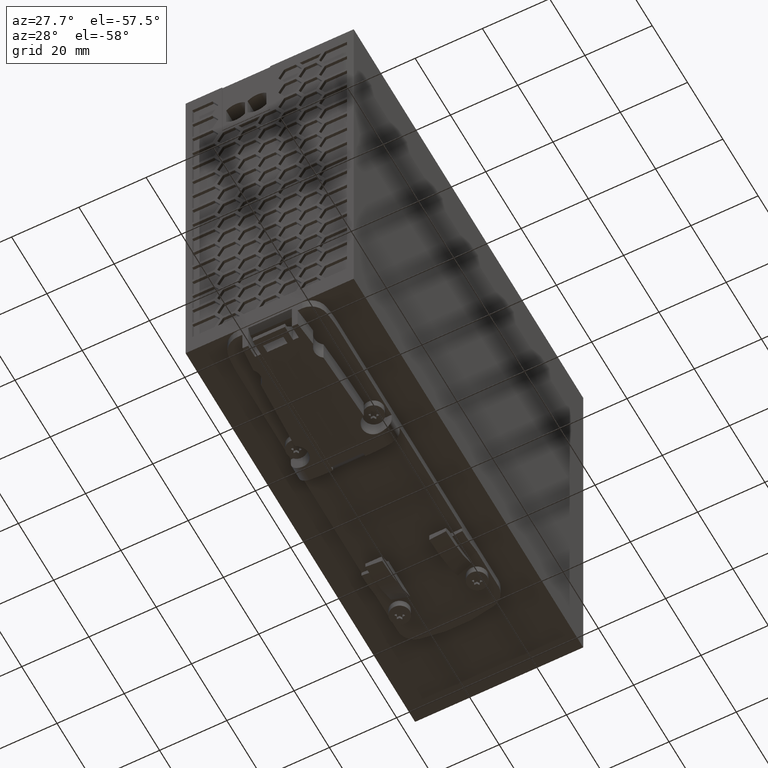
[diagram: clean part render]
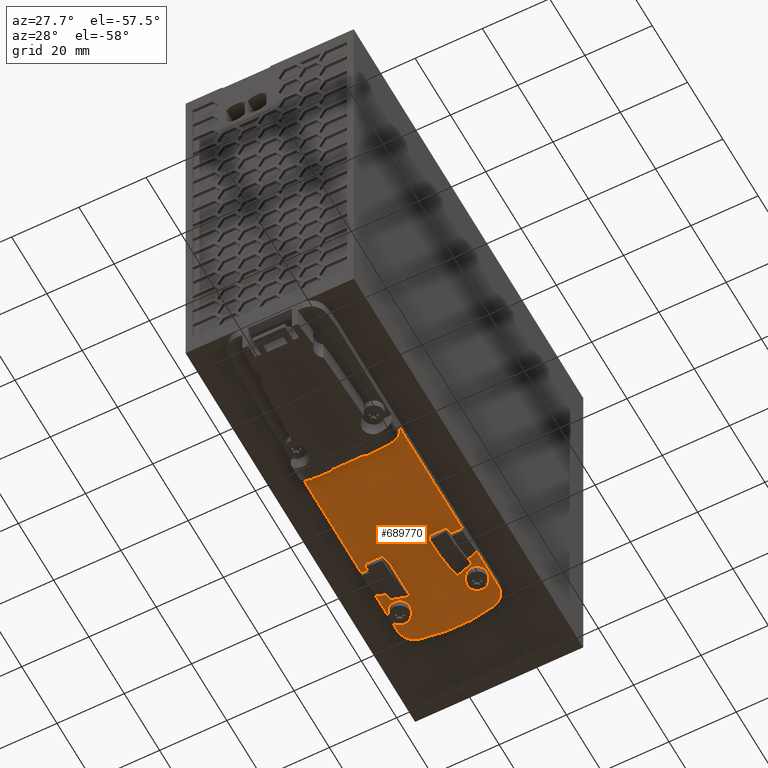
[diagram: same view with one face highlighted and labeled with its STEP entity id]
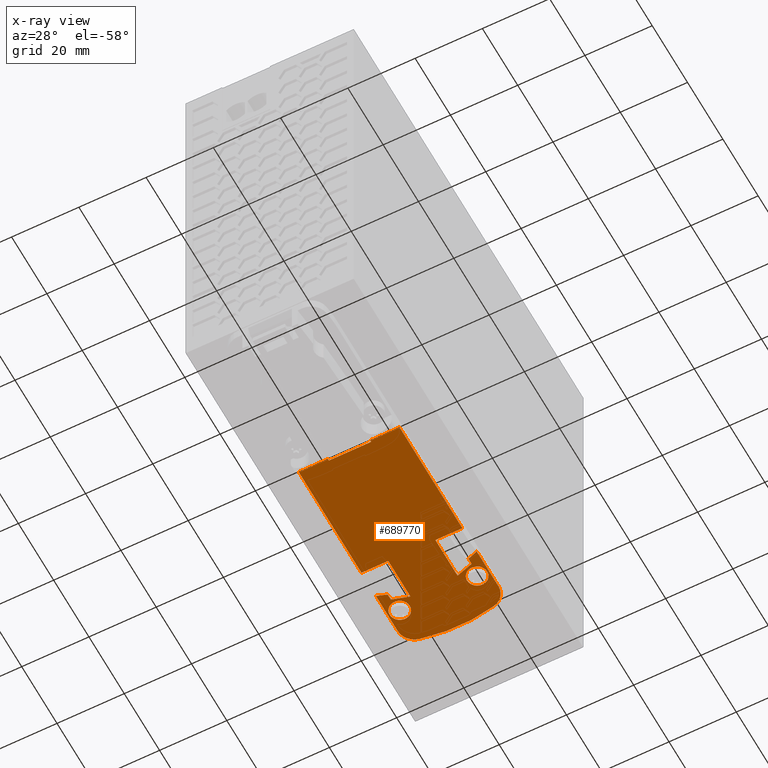
[diagram: x-ray of the same camera — body ghosted, the highlighted face saturated]
A machine part, auxiliary view. The second image highlights one B-rep face of the part: STEP entity #689770.
The next image is the same camera in x-ray: the body ghosted, the highlighted face saturated — about 0% of this face is hidden behind the body in this view.
In plain terms, the highlighted planar face has unit normal (-0, 0, -1).
Its self-contained STEP definition (entity closure, byte-faithful):
#573440=CARTESIAN_POINT('',(24.3012630065629,45.5488077706603,
6.59999999999972));
#573450=VERTEX_POINT('',#573440);
#573500=CARTESIAN_POINT('',(0.00178708709996158,45.548473730133,
6.59999999999972));
#573510=DIRECTION('',(0.999999999905512,1.37468202365522E-5,
5.47171506811966E-60));
#573520=VECTOR('',#573510,1.);
#573530=LINE('',#573500,#573520);
#573540=CARTESIAN_POINT('',(11.7012630077534,45.5486345607253,
6.59999999999972));
#573550=VERTEX_POINT('',#573540);
#573560=EDGE_CURVE('',#573550,#573450,#573530,.T.);
#578600=CARTESIAN_POINT('',(3.00126988198557,45.0485149634365,
6.59999999999972));
#578610=VERTEX_POINT('',#578600);
#578640=CARTESIAN_POINT('',(3.00011306664807,129.2,6.59999999999972));
#578650=DIRECTION('',(1.37468202359206E-5,-0.999999999905512,
3.26265223505973E-55));
#578660=VECTOR('',#578650,1.);
#578670=LINE('',#578640,#578660);
#578680=CARTESIAN_POINT('',(3.00078186986719,80.5485149600822,
6.59999999999972));
#578690=VERTEX_POINT('',#578680);
#578700=EDGE_CURVE('',#578690,#578610,#578670,.T.);
#579070=CARTESIAN_POINT('',(3.00066966039108,88.7110917725239,
6.59999999999974));
#579080=VERTEX_POINT('',#579070);
#579110=CARTESIAN_POINT('',(3.00011306664807,129.2,6.59999999999972));
#579120=DIRECTION('',(1.37468202359206E-5,-0.999999999905512,
3.26265223505973E-55));
#579130=VECTOR('',#579120,1.);
#579140=LINE('',#579110,#579130);
#579150=CARTESIAN_POINT('',(3.00049971882965,101.073336895104,
6.59999999999972));
#579160=VERTEX_POINT('',#579150);
#579170=EDGE_CURVE('',#579160,#579080,#579140,.T.);
#606040=CARTESIAN_POINT('',(30.0006545901301,89.8075498553755,
6.59999999999972));
#606050=VERTEX_POINT('',#606040);
#606080=CARTESIAN_POINT('',(30.0001130691992,129.2,6.59999999999972));
#606090=DIRECTION('',(-1.37468202359331E-5,0.999999999905513,
-3.26265223505973E-55));
#606100=VECTOR('',#606090,1.);
#606110=LINE('',#606080,#606100);
#606120=CARTESIAN_POINT('',(30.0006303560198,91.5704382812119,
6.59999999999768));
#606130=VERTEX_POINT('',#606120);
#606140=EDGE_CURVE('',#606050,#606130,#606110,.T.);
#611670=CARTESIAN_POINT('',(25.0007818677885,80.5488173901274,
6.59999999999972));
#611680=VERTEX_POINT('',#611670);
#611710=CARTESIAN_POINT('',(0.00178708709996158,80.5484737334401,
6.59999999999972));
#611720=DIRECTION('',(0.999999999905512,1.37468202355531E-5,
5.47171506844563E-60));
#611730=VECTOR('',#611720,1.);
#611740=LINE('',#611710,#611730);
#611750=CARTESIAN_POINT('',(33.0007818670326,80.5489273646893,
6.59999999999972));
#611760=VERTEX_POINT('',#611750);
#611770=EDGE_CURVE('',#611680,#611760,#611740,.T.);
#616910=CARTESIAN_POINT('',(6.00065459239785,89.8072199267511,
6.59999999999972));
#616920=CARTESIAN_POINT('',(5.98476421142438,89.8022766316507,
6.59999999999972));
#616930=CARTESIAN_POINT('',(5.95298958652914,89.7923702841277,
6.59999999999972));
#616940=CARTESIAN_POINT('',(5.88946914156527,89.7724650776187,
6.59999999999972));
#616950=CARTESIAN_POINT('',(5.8101224164082,89.7474118773588,
6.59999999999972));
#616960=CARTESIAN_POINT('',(5.7387753413328,89.7246590431978,
6.59999999999972));
#616970=CARTESIAN_POINT('',(5.69123806289457,89.709404959447,
6.59999999999972));
#616980=CARTESIAN_POINT('',(5.65955442620393,89.6992109631759,
6.59999999999972));
#616990=CARTESIAN_POINT('',(5.57245576005785,89.6710776141812,
6.59999999999972));
#617000=CARTESIAN_POINT('',(5.43010635000332,89.6244959087909,
6.59999999999972));
#617010=CARTESIAN_POINT('',(5.05127607754603,89.4979564213531,
6.59999999999972));
#617020=CARTESIAN_POINT('',(4.48590698230466,89.2994310857445,
6.59999999999972));
#617030=CARTESIAN_POINT('',(3.86339380902277,89.0633757548544,
6.59999999999972));
#617040=CARTESIAN_POINT('',(3.4308793824773,88.8899380064901,
6.59999999999972));
#617050=CARTESIAN_POINT('',(3.23088705584881,88.8075050167989,
6.59999999999972));
#617060=CARTESIAN_POINT('',(3.14641726128744,88.7722888845206,
6.59999999999972));
#617070=CARTESIAN_POINT('',(3.11955406311227,88.7610513605265,
6.59999999999972));
#617080=CARTESIAN_POINT('',(3.10420751573085,88.7546207225749,
6.59999999999972));
#617090=CARTESIAN_POINT('',(3.08119201267528,88.7449644878059,
6.59999999999974));
#617100=CARTESIAN_POINT('',(3.05434811198608,88.7336809751512,
6.59999999999972));
#617110=CARTESIAN_POINT('',(3.02750737338545,88.7223899577265,
6.59999999999972));
#617120=CARTESIAN_POINT('',(3.01408794729577,88.7167422076046,
6.59999999999972));
#617130=CARTESIAN_POINT('',(3.00641989085222,88.7135144791262,
6.59999999999972));
#617140=CARTESIAN_POINT('',(3.00258618325065,88.7118998529655,
6.59999999999972));
#617150=CARTESIAN_POINT('',(3.00066965469374,88.7110917684843,
6.59999999999972));
#617160=B_SPLINE_CURVE_WITH_KNOTS('',3,(#616910,#616920,#616930,#616940,
#616950,#616960,#616970,#616980,#616990,#617000,#617010,#617020,#617030,
#617040,#617050,#617060,#617070,#617080,#617090,#617100,#617110,#617120,
#617130,#617140,#617150),.UNSPECIFIED.,.F.,.F.,(4,1,1,1,1,1,1,1,1,1,1,1,
1,1,1,1,1,1,1,1,1,1,4),(0.,0.015624733671173,0.031249469653176,
0.062499044700485,0.09374860621571,0.101561002358867,0.109373399372656,
0.124998194456258,0.187498141469384,0.249998122328627,0.499998939434173,
0.750035154333188,0.875018056520831,0.937509067185836,0.953131804020811,
0.960943172601073,0.964848856958487,0.968754541260401,0.984377271003576,
0.992188635879079,0.9960943180232,0.998047159057379,1.),.UNSPECIFIED.);
#617170=CARTESIAN_POINT('',(6.00065459239778,89.8072199316904,
6.59999999999972));
#617180=VERTEX_POINT('',#617170);
#617190=EDGE_CURVE('',#617180,#579080,#617160,.T.);
#628140=CARTESIAN_POINT('',(33.0006696575565,88.711504177131,
6.59999999999972));
#628150=VERTEX_POINT('',#628140);
#628190=CARTESIAN_POINT('',(33.0001130694827,129.2,6.59999999999972));
#628200=DIRECTION('',(1.37468202358229E-5,-0.999999999905513,
3.26265223505973E-55));
#628210=VECTOR('',#628200,1.);
#628220=LINE('',#628190,#628210);
#628230=CARTESIAN_POINT('',(33.0012698791509,45.0489273680436,
6.59999999999972));
#628240=VERTEX_POINT('',#628230);
#628250=EDGE_CURVE('',#611760,#628240,#628220,.T.);
#628610=CARTESIAN_POINT('',(33.000499715995,101.073749299711,
6.59999999999972));
#628620=VERTEX_POINT('',#628610);
#628650=CARTESIAN_POINT('',(33.0001130694827,129.2,6.59999999999972));
#628660=DIRECTION('',(1.37468202358229E-5,-0.999999999905513,
3.26265223505973E-55));
#628670=VECTOR('',#628660,1.);
#628680=LINE('',#628650,#628670);
#628690=EDGE_CURVE('',#628620,#628150,#628680,.T.);
#632710=CARTESIAN_POINT('',(26.5005749452048,95.6012444441962,
6.59999999999972));
#632720=VERTEX_POINT('',#632710);
#632750=CARTESIAN_POINT('',(29.5005749452048,95.6012444441962,
6.59999999999972));
#632760=DIRECTION('',(9.95682444457783E-60,-3.26265223399926E-55,-1.));
#632770=DIRECTION('',(-1.,1.38913403349705E-19,-9.95682444457783E-60));
#632780=AXIS2_PLACEMENT_3D('',#632750,#632760,#632770);
#632790=CIRCLE('',#632780,3.);
#632800=CARTESIAN_POINT('',(32.5005749452048,95.6012444441962,
6.59999999999972));
#632810=VERTEX_POINT('',#632800);
#632820=EDGE_CURVE('',#632810,#632720,#632790,.T.);
#634760=CARTESIAN_POINT('',(0.00178708709996158,80.5484737334401,
6.59999999999972));
#634770=DIRECTION('',(-0.999999999905513,-1.37468202355511E-5,
-5.47171506844629E-60));
#634780=VECTOR('',#634770,1.);
#634790=LINE('',#634760,#634780);
#634800=CARTESIAN_POINT('',(11.0007818691113,80.5486249346441,
6.59999999999972));
#634810=VERTEX_POINT('',#634800);
#634820=EDGE_CURVE('',#634810,#578690,#634790,.T.);
#635230=CARTESIAN_POINT('',(25.0001130687268,129.2,6.59999999999972));
#635240=DIRECTION('',(-1.37468202356956E-5,0.999999999905512,
-3.26265223505973E-55));
#635250=VECTOR('',#635240,1.);
#635260=LINE('',#635230,#635250);
#635270=CARTESIAN_POINT('',(25.0006094996072,93.0875847774152,
6.59999999999759));
#635280=VERTEX_POINT('',#635270);
#635290=EDGE_CURVE('',#611680,#635280,#635260,.T.);
#656590=CARTESIAN_POINT('',(11.000113067404,129.2,6.59999999999972));
#656600=DIRECTION('',(-1.3746820235798E-5,0.999999999905513,
-3.26265223505973E-55));
#656610=VECTOR('',#656600,1.);
#656620=LINE('',#656590,#656610);
#656630=CARTESIAN_POINT('',(11.00060950093,93.0873923219355,
6.59999999999972));
#656640=VERTEX_POINT('',#656630);
#656650=EDGE_CURVE('',#634810,#656640,#656620,.T.);
#659680=CARTESIAN_POINT('',(6.00011306693153,129.2,6.59999999999972));
#659690=DIRECTION('',(-1.37468202359883E-5,0.999999999905512,
-3.26265223505973E-55));
#659700=VECTOR('',#659690,1.);
#659710=LINE('',#659680,#659700);
#659720=CARTESIAN_POINT('',(6.00063035828749,91.5701083575295,
6.59999999999972));
#659730=VERTEX_POINT('',#659720);
#659740=EDGE_CURVE('',#617180,#659730,#659710,.T.);
#661480=CARTESIAN_POINT('',(30.0006545901301,89.8075498553755,
6.59999999999972));
#661490=CARTESIAN_POINT('',(30.016545107802,89.8026069970392,
6.59999999999972));
#661500=CARTESIAN_POINT('',(30.0483200054555,89.7927015190821,
6.59999999999972));
#661510=CARTESIAN_POINT('',(30.1118410008278,89.7727980584553,
6.59999999999972));
#661520=CARTESIAN_POINT('',(30.1911884186694,89.7477470388764,
6.59999999999972));
#661530=CARTESIAN_POINT('',(30.2625361222432,89.7249961638063,
6.59999999999972));
#661540=CARTESIAN_POINT('',(30.3100738221214,89.7097433856355,
6.59999999999972));
#661550=CARTESIAN_POINT('',(30.3417577405119,89.699550259728,
6.59999999999972));
#661560=CARTESIAN_POINT('',(30.4288571838585,89.6714193033112,
6.59999999999974));
#661570=CARTESIAN_POINT('',(30.5712078807246,89.6248415087899,
6.59999999999972));
#661580=CARTESIAN_POINT('',(30.9500416565816,89.4983124339032,
6.59999999999974));
#661590=CARTESIAN_POINT('',(31.5154160833374,89.2998025500072,
6.59999999999972));
#661600=CARTESIAN_POINT('',(32.1379358675141,89.063764775543,
6.59999999999972));
#661610=CARTESIAN_POINT('',(32.570454896679,88.890338590126,
6.59999999999972));
#661620=CARTESIAN_POINT('',(32.77044957678,88.8079110998804,
6.59999999999972));
#661630=CARTESIAN_POINT('',(32.854920381288,88.7726972769628,
6.59999999999972));
#661640=CARTESIAN_POINT('',(32.8817839004219,88.7614604865354,
6.59999999999972));
#661650=CARTESIAN_POINT('',(32.8971306312597,88.7550302670154,
6.59999999999972));
#661660=CARTESIAN_POINT('',(32.9201464075162,88.7453746542797,
6.59999999999972));
#661670=CARTESIAN_POINT('',(32.9469906343602,88.7340918835978,
6.59999999999972));
#661680=CARTESIAN_POINT('',(32.9738316946944,88.7228015970152,
6.59999999999972));
#661690=CARTESIAN_POINT('',(32.9872512818257,88.7171542125611,
6.59999999999972));
#661700=CARTESIAN_POINT('',(32.9949194289703,88.7139266898567,
6.59999999999972));
#661710=CARTESIAN_POINT('',(32.998753181176,88.7123121647552,
6.59999999999972));
#661720=CARTESIAN_POINT('',(33.0006697328075,88.7115041325775,
6.59999999999972));
#661730=B_SPLINE_CURVE_WITH_KNOTS('',3,(#661480,#661490,#661500,#661510,
#661520,#661530,#661540,#661550,#661560,#661570,#661580,#661590,#661600,
#661610,#661620,#661630,#661640,#661650,#661660,#661670,#661680,#661690,
#661700,#661710,#661720),.UNSPECIFIED.,.F.,.F.,(4,1,1,1,1,1,1,1,1,1,1,1,
1,1,1,1,1,1,1,1,1,1,4),(0.,0.015624734007336,0.031249470325589,
0.06249904604598,0.093748608238673,0.101561004551492,0.109373401735089,
0.124998197158643,0.187498145349089,0.249998127373343,0.499998954614795,
0.750035064020798,0.875018001263974,0.937509040707152,0.953131784068478,
0.960943155962061,0.964848841976381,0.968754527935468,0.984377264341221,
0.992188632547832,0.996094316357438,0.998047158224346,1.),.UNSPECIFIED.)
;
#661740=EDGE_CURVE('',#606050,#628150,#661730,.T.);
#682940=CARTESIAN_POINT('',(9.50057494737806,95.6009282673308,
6.59999999999972));
#682950=VERTEX_POINT('',#682940);
#683030=CARTESIAN_POINT('',(3.50057494737801,95.6009282673308,
6.59999999999972));
#683040=VERTEX_POINT('',#683030);
#683070=CARTESIAN_POINT('',(6.50057494737803,95.6009282673308,
6.59999999999972));
#683080=DIRECTION('',(9.95682444457783E-60,-3.26265223399926E-55,-1.));
#683090=DIRECTION('',(-1.,1.38913403349705E-19,-9.95682444457783E-60));
#683100=AXIS2_PLACEMENT_3D('',#683070,#683080,#683090);
#683110=CIRCLE('',#683100,3.00000000000002);
#683120=EDGE_CURVE('',#682950,#683040,#683110,.T.);
#688120=CARTESIAN_POINT('',(33.7512929131708,43.4947560284076,
6.59999999999972));
#688130=DIRECTION('',(9.95682444457778E-60,-3.26265223399926E-55,-1.));
#688140=DIRECTION('',(-1.,1.38913403349705E-19,-9.95682444457783E-60));
#688150=AXIS2_PLACEMENT_3D('',#688120,#688130,#688140);
#688160=PLANE('',#688150);
#688170=ORIENTED_EDGE('',*,*,#628250,.T.);
#688180=ORIENTED_EDGE('',*,*,#611770,.T.);
#688190=ORIENTED_EDGE('',*,*,#635290,.F.);
#688200=CARTESIAN_POINT('',(25.0006094996072,93.0875847774143,
6.59999999999972));
#688210=CARTESIAN_POINT('',(25.0010222519934,93.0874825275536,
6.59999999999972));
#688220=CARTESIAN_POINT('',(25.0018472989053,93.0872761825704,
6.59999999999972));
#688230=CARTESIAN_POINT('',(25.0034975278931,93.0868640392918,
6.59999999999972));
#688240=CARTESIAN_POINT('',(25.0063853574319,93.0861424890967,
6.59999999999972));
#688250=CARTESIAN_POINT('',(25.0121610724934,93.08469960124,
6.59999999999974));
#688260=CARTESIAN_POINT('',(25.0237123395021,93.0818131412894,
6.59999999999972));
#688270=CARTESIAN_POINT('',(25.0468151934023,93.0760414434465,
6.59999999999974));
#688280=CARTESIAN_POINT('',(25.07321860804,93.0694446920108,
6.59999999999972));
#688290=CARTESIAN_POINT('',(25.0996222123559,93.0628475674284,
6.59999999999972));
#688300=CARTESIAN_POINT('',(25.1260265599203,93.0562511951009,
6.59999999999972));
#688310=CARTESIAN_POINT('',(25.1590284895179,93.0479884616831,
6.59999999999972));
#688320=CARTESIAN_POINT('',(25.1986228584205,93.0380389158941,
6.59999999999972));
#688330=CARTESIAN_POINT('',(25.2514055995795,93.024729762713,
6.59999999999972));
#688340=CARTESIAN_POINT('',(25.3965244277217,92.9879488075769,
6.59999999999972));
#688350=CARTESIAN_POINT('',(25.5810413072573,92.9403765179874,
6.59999999999972));
#688360=CARTESIAN_POINT('',(25.7916588247903,92.8849746386807,
6.59999999999972));
#688370=CARTESIAN_POINT('',(26.0021133866972,92.8288793000628,
6.59999999999972));
#688380=CARTESIAN_POINT('',(26.369966489902,92.7288980848095,
6.59999999999972));
#688390=CARTESIAN_POINT('',(26.8940882748331,92.5809180923427,
6.59999999999972));
#688400=CARTESIAN_POINT('',(27.7295424295657,92.3332444871227,
6.59999999999972));
#688410=CARTESIAN_POINT('',(28.5600647428124,92.0693271967608,
6.59999999999972));
#688420=CARTESIAN_POINT('',(29.2820405585789,91.8244308075066,
6.59999999999974));
#688430=CARTESIAN_POINT('',(29.6160756853386,91.7075270887904,
6.59999999999972));
#688440=CARTESIAN_POINT('',(29.7571805606664,91.6575104829261,
6.59999999999972));
#688450=CARTESIAN_POINT('',(29.8084654014353,91.6392618471759,
6.59999999999972));
#688460=CARTESIAN_POINT('',(29.8469177165573,91.6255459716244,
6.59999999999972));
#688470=CARTESIAN_POINT('',(29.8853574106404,91.6117970948052,
6.59999999999972));
#688480=CARTESIAN_POINT('',(29.9173807724559,91.6003153003623,
6.59999999999972));
#688490=CARTESIAN_POINT('',(29.9429960826061,91.591121394035,
6.59999999999972));
#688500=CARTESIAN_POINT('',(29.9622077153244,91.5842275722104,
6.59999999999972));
#688510=CARTESIAN_POINT('',(29.9782171061944,91.5784818890114,
6.59999999999972));
#688520=CARTESIAN_POINT('',(29.9894239143255,91.5744605779258,
6.59999999999972));
#688530=CARTESIAN_POINT('',(29.9950272044384,91.5724496147065,
6.59999999999972));
#688540=CARTESIAN_POINT('',(29.9978289012348,91.5714442486989,
6.59999999999972));
#688550=CARTESIAN_POINT('',(29.9994298425712,91.5708696188739,
6.59999999999972));
#688560=CARTESIAN_POINT('',(30.0002304405834,91.5705826172625,
6.59999999999972));
#688570=CARTESIAN_POINT('',(30.0006304325588,91.570438256813,
6.59999999999972));
#688580=B_SPLINE_CURVE_WITH_KNOTS('',3,(#688200,#688210,#688220,#688230,
#688240,#688250,#688260,#688270,#688280,#688290,#688300,#688310,#688320,
#688330,#688340,#688350,#688360,#688370,#688380,#688390,#688400,#688410,
#688420,#688430,#688440,#688450,#688460,#688470,#688480,#688490,#688500,
#688510,#688520,#688530,#688540,#688550,#688560,#688570),.UNSPECIFIED.,
.F.,.F.,(4,1,1,1,1,1,1,1,1,1,1,1,1,1,1,1,1,1,1,1,1,1,1,1,1,1,1,1,1,1,1,1
,1,1,1,4),(0.,0.000244037985387,0.000488076225778,0.000976152999124,
0.001952307130476,0.003904616562713,0.007809237726096,0.015618484908559,
0.019523263645805,0.023428042356148,0.031237598729755,0.039047606663913,
0.046857615066748,0.062477638027739,0.124964388049168,0.156213350869903,
0.187462278490375,0.249960417145302,0.374981011408979,0.500003505166397,
0.750040847944962,0.875035739136489,0.937522370320862,0.953142382936274,
0.960952386788645,0.968762390658637,0.976571943563216,0.98438149652128,
0.988286120546543,0.992190744594559,0.996095366606797,0.998047676530696,
0.999023831036355,0.999511908054371,0.999755952598848,1.),.UNSPECIFIED.)
;
#688590=EDGE_CURVE('',#635280,#606130,#688580,.T.);
#688600=ORIENTED_EDGE('',*,*,#688590,.F.);
#688610=ORIENTED_EDGE('',*,*,#606140,.T.);
#688620=ORIENTED_EDGE('',*,*,#661740,.F.);
#688630=ORIENTED_EDGE('',*,*,#628690,.T.);
#688640=CARTESIAN_POINT('',(28.0004997164675,101.073680565609,
6.59999999999972));
#688650=DIRECTION('',(9.95682444457783E-60,-3.26265223399926E-55,-1.));
#688660=DIRECTION('',(-1.,1.38913403349705E-19,-9.95682444457783E-60));
#688670=AXIS2_PLACEMENT_3D('',#688640,#688650,#688660);
#688680=CIRCLE('',#688670,4.99999999999995);
#688690=CARTESIAN_POINT('',(29.1115438119969,105.948676054611,
6.59999999999972));
#688700=VERTEX_POINT('',#688690);
#688710=EDGE_CURVE('',#688700,#628620,#688680,.T.);
#688720=ORIENTED_EDGE('',*,*,#688710,.T.);
#688730=CARTESIAN_POINT('',(18.0011028567024,57.1987211645928,
6.59999999999972));
#688740=DIRECTION('',(9.95682444457783E-60,-3.26265223399926E-55,-1.));
#688750=DIRECTION('',(-1.,1.38913403349705E-19,-9.95682444457783E-60));
#688760=AXIS2_PLACEMENT_3D('',#688730,#688740,#688750);
#688770=CIRCLE('',#688760,49.9999999999993);
#688780=CARTESIAN_POINT('',(6.88932159187441,105.948370569717,
6.59999999999972));
#688790=VERTEX_POINT('',#688780);
#688800=EDGE_CURVE('',#688790,#688700,#688770,.T.);
#688810=ORIENTED_EDGE('',*,*,#688800,.T.);
#688820=CARTESIAN_POINT('',(8.00049971835728,101.073405629205,
6.59999999999972));
#688830=DIRECTION('',(9.95682444457783E-60,-3.26265223399926E-55,-1.));
#688840=DIRECTION('',(-1.,1.38913403349705E-19,-9.95682444457783E-60));
#688850=AXIS2_PLACEMENT_3D('',#688820,#688830,#688840);
#688860=CIRCLE('',#688850,5.00000000000008);
#688870=EDGE_CURVE('',#579160,#688790,#688860,.T.);
#688880=ORIENTED_EDGE('',*,*,#688870,.T.);
#688890=ORIENTED_EDGE('',*,*,#579170,.F.);
#688900=ORIENTED_EDGE('',*,*,#617190,.T.);
#688910=ORIENTED_EDGE('',*,*,#659740,.F.);
#688920=CARTESIAN_POINT('',(11.0006095006035,93.0873923209287,
6.59999999999972));
#688930=CARTESIAN_POINT('',(11.000196751031,93.0872900597221,
6.59999999999972));
#688940=CARTESIAN_POINT('',(10.999371709707,93.0870836924227,
6.59999999999972));
#688950=CARTESIAN_POINT('',(10.9977214920801,93.0866715037043,
6.59999999999972));
#688960=CARTESIAN_POINT('',(10.9948336822771,93.0859498746094,
6.59999999999972));
#688970=CARTESIAN_POINT('',(10.9890580069811,93.0845068277512,
6.59999999999972));
#688980=CARTESIAN_POINT('',(10.9775068193365,93.0816200505471,
6.59999999999972));
#688990=CARTESIAN_POINT('',(10.9544041242785,93.0758477175968,
6.59999999999972));
#689000=CARTESIAN_POINT('',(10.9280008914586,93.0692502390184,
6.59999999999972));
#689010=CARTESIAN_POINT('',(10.9015974678113,93.062652391701,
6.59999999999972));
#689020=CARTESIAN_POINT('',(10.8751932929652,93.0560553280313,
6.59999999999972));
#689030=CARTESIAN_POINT('',(10.842191596814,93.047791663045,
6.59999999999972));
#689040=CARTESIAN_POINT('',(10.8025975274606,93.03784092553,
6.59999999999972));
#689050=CARTESIAN_POINT('',(10.749815116448,93.0245304632089,
6.59999999999972));
#689060=CARTESIAN_POINT('',(10.6046973319026,92.9877453892261,
6.59999999999972));
#689070=CARTESIAN_POINT('',(10.4201817371273,92.9401681187926,
6.59999999999972));
#689080=CARTESIAN_POINT('',(10.2095657471826,92.8847604317284,
6.59999999999972));
#689090=CARTESIAN_POINT('',(9.99911272655243,92.8286593111742,
6.59999999999972));
#689100=CARTESIAN_POINT('',(9.63126237292319,92.7286679798648,
6.59999999999972));
#689110=CARTESIAN_POINT('',(9.10714465667324,92.5806735776707,
6.59999999999972));
#689120=CARTESIAN_POINT('',(8.2716973113458,92.3329770040235,
6.59999999999972));
#689130=CARTESIAN_POINT('',(7.44118225464545,92.0690368792015,
6.59999999999972));
#689140=CARTESIAN_POINT('',(6.71921317224135,91.8241206403732,
6.59999999999972));
#689150=CARTESIAN_POINT('',(6.38518125973321,91.7072077378555,
6.59999999999972));
#689160=CARTESIAN_POINT('',(6.24407775960413,91.6571872525261,
6.59999999999972));
#689170=CARTESIAN_POINT('',(6.19279342057924,91.6389372067753,
6.59999999999972));
#689180=CARTESIAN_POINT('',(6.15434148257273,91.6252202740369,
6.59999999999972));
#689190=CARTESIAN_POINT('',(6.11590216651293,91.6114703403763,
6.59999999999972));
#689200=CARTESIAN_POINT('',(6.08387912038794,91.5999876654989,
6.59999999999972));
#689210=CARTESIAN_POINT('',(6.05826406302292,91.5907930549171,
6.59999999999972));
#689220=CARTESIAN_POINT('',(6.03905261984919,91.583898704898,
6.59999999999972));
#689230=CARTESIAN_POINT('',(6.02304338695602,91.5781525815445,
6.59999999999972));
#689240=CARTESIAN_POINT('',(6.01183668939018,91.5741309623451,
6.59999999999972));
#689250=CARTESIAN_POINT('',(6.00623345456848,91.5721198450717,
6.59999999999972));
#689260=CARTESIAN_POINT('',(6.00343178541443,91.5711144020357,
6.59999999999972));
#689270=CARTESIAN_POINT('',(6.00183085987747,91.5705397281952,
6.59999999999972));
#689280=CARTESIAN_POINT('',(6.00103026975624,91.5702527045728,
6.59999999999972));
#689290=CARTESIAN_POINT('',(6.0006302817501,91.5701083331256,
6.59999999999972));
#689300=B_SPLINE_CURVE_WITH_KNOTS('',3,(#688920,#688930,#688940,#688950,
#688960,#688970,#688980,#688990,#689000,#689010,#689020,#689030,#689040,
#689050,#689060,#689070,#689080,#689090,#689100,#689110,#689120,#689130,
#689140,#689150,#689160,#689170,#689180,#689190,#689200,#689210,#689220,
#689230,#689240,#689250,#689260,#689270,#689280,#689290),.UNSPECIFIED.,
.F.,.F.,(4,1,1,1,1,1,1,1,1,1,1,1,1,1,1,1,1,1,1,1,1,1,1,1,1,1,1,1,1,1,1,1
,1,1,1,4),(0.,0.000244037983802,0.000488076222574,0.00097615299268,
0.001952307117527,0.003904616536751,0.007809237674098,0.015618484804456,
0.019523263546943,0.023428042262412,0.03123759862989,0.039047606437888,
0.046857614960146,0.062477637924135,0.124964387955741,0.15621335078156,
0.187462278406562,0.249960417070914,0.374981011362291,0.500003505122966,
0.750040847926857,0.875035739128354,0.93752237031702,0.95314238293342,
0.960952386786285,0.96876239065677,0.976571943561825,0.984381496520365,
0.988286120545852,0.992190744594104,0.996095366606573,0.998047676530583,
0.999023831036303,0.999511908054342,0.999755952598832,1.),.UNSPECIFIED.)
;
#689310=EDGE_CURVE('',#656640,#659730,#689300,.T.);
#689320=ORIENTED_EDGE('',*,*,#689310,.T.);
#689330=ORIENTED_EDGE('',*,*,#656650,.T.);
#689340=ORIENTED_EDGE('',*,*,#634820,.F.);
#689350=ORIENTED_EDGE('',*,*,#578700,.F.);
#689360=CARTESIAN_POINT('',(0.00178708709996158,45.0484737300857,
6.59999999999972));
#689370=DIRECTION('',(0.999999999905513,1.37468202375279E-5,
5.47171506780131E-60));
#689380=VECTOR('',#689370,1.);
#689390=LINE('',#689360,#689380);
#689400=CARTESIAN_POINT('',(11.7012698811635,45.0486345607726,
6.59999999999972));
#689410=VERTEX_POINT('',#689400);
#689420=EDGE_CURVE('',#578610,#689410,#689390,.T.);
#689430=ORIENTED_EDGE('',*,*,#689420,.F.);
#689440=CARTESIAN_POINT('',(11.7001130674701,129.2,6.59999999999972));
#689450=DIRECTION('',(-1.37468202363879E-5,0.999999999905512,
-3.26265223505973E-55));
#689460=VECTOR('',#689450,1.);
#689470=LINE('',#689440,#689460);
#689480=EDGE_CURVE('',#689410,#573550,#689470,.T.);
#689490=ORIENTED_EDGE('',*,*,#689480,.F.);
#689500=ORIENTED_EDGE('',*,*,#573560,.F.);
#689510=CARTESIAN_POINT('',(24.3001130686608,129.2,6.59999999999972));
#689520=DIRECTION('',(1.37468202343577E-5,-0.999999999905512,
3.26265223505973E-55));
#689530=VECTOR('',#689520,1.);
#689540=LINE('',#689510,#689530);
#689550=CARTESIAN_POINT('',(24.301269879973,45.0488077707076,
6.59999999999972));
#689560=VERTEX_POINT('',#689550);
#689570=EDGE_CURVE('',#573450,#689560,#689540,.T.);
#689580=ORIENTED_EDGE('',*,*,#689570,.F.);
#689590=CARTESIAN_POINT('',(0.00178708709996158,45.0484737300857,
6.59999999999972));
#689600=DIRECTION('',(0.999999999905513,1.37468202375279E-5,
5.47171506780131E-60));
#689610=VECTOR('',#689600,1.);
#689620=LINE('',#689590,#689610);
#689630=EDGE_CURVE('',#689560,#628240,#689620,.T.);
#689640=ORIENTED_EDGE('',*,*,#689630,.F.);
#689650=EDGE_LOOP('',(#689640,#689580,#689500,#689490,#689430,#689350,
#689340,#689330,#689320,#688910,#688900,#688890,#688880,#688810,#688720,
#688630,#688620,#688610,#688600,#688190,#688180,#688170));
#689660=FACE_OUTER_BOUND('',#689650,.T.);
#689670=ORIENTED_EDGE('',*,*,#632820,.F.);
#689680=EDGE_CURVE('',#632720,#632810,#632790,.T.);
#689690=ORIENTED_EDGE('',*,*,#689680,.F.);
#689700=EDGE_LOOP('',(#689690,#689670));
#689710=FACE_BOUND('',#689700,.T.);
#689720=EDGE_CURVE('',#683040,#682950,#683110,.T.);
#689730=ORIENTED_EDGE('',*,*,#689720,.F.);
#689740=ORIENTED_EDGE('',*,*,#683120,.F.);
#689750=EDGE_LOOP('',(#689740,#689730));
#689760=FACE_BOUND('',#689750,.T.);
#689770=ADVANCED_FACE('',(#689660,#689710,#689760),#688160,.T.);